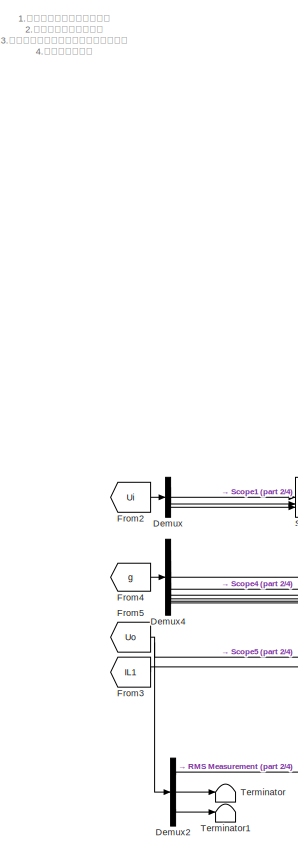
[diagram: root canvas - part 1/4, left side, full height]
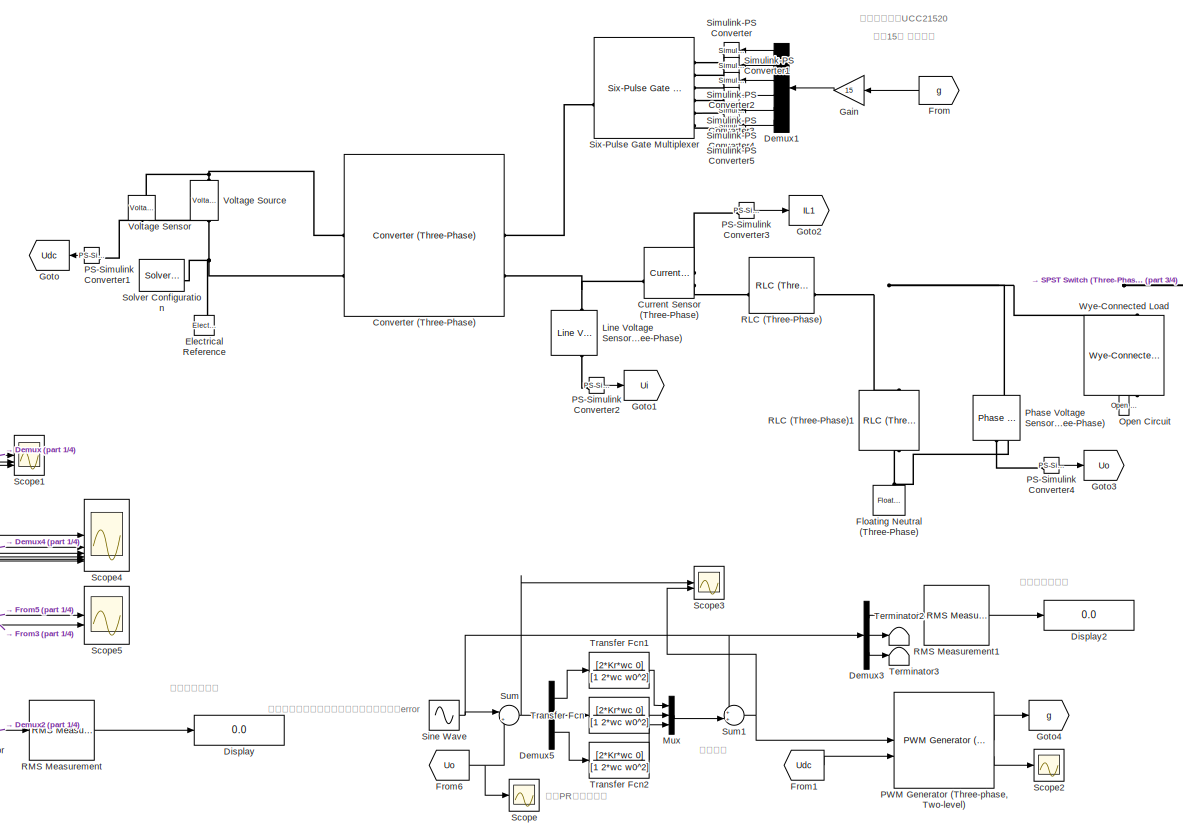
[diagram: root canvas - part 2/4, center side, full height]
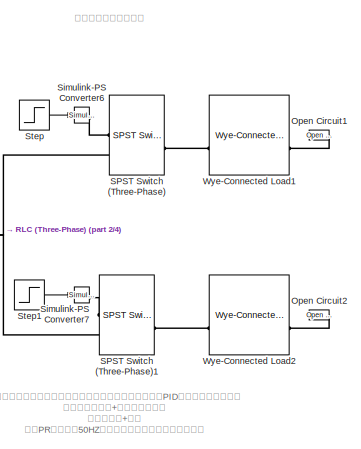
[diagram: root canvas - part 3/4, top right region]
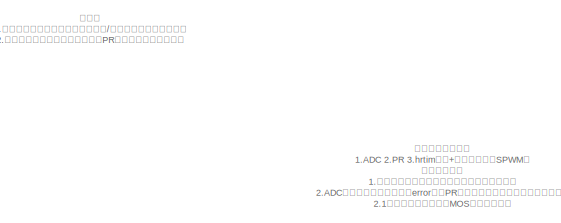
[diagram: root canvas - part 4/4, bottom center region]
MODEL slx_818b29fa635a
KIND model
CONFIG AbsTol = 1e-3
CONFIG EnableMultiTasking = off
CONFIG FixedStep = auto
CONFIG InitFcn = SampleTime = 1e-6;\n\nUn = 400;\nPn = 20e3;\n\nUdc = 700;\nL1 = 1e-3;\nC1 = 30e-6;\n\nfsw = 10e3;\n\nKr = 5;\nwc = 5*2*pi;\nw0 = 50*2*pi;
CONFIG MaxStep = auto
CONFIG MinStep = auto
CONFIG RelTol = 1e-3
CONFIG SampleTimeConstraint = Unconstrained
CONFIG SolverName = VariableStepAuto
CONFIG StartTime = 0.0
CONFIG StopTime = 0.2
BLOCK [Reference] Converter (Three-Phase)  REF=ee_lib/Semiconductors &
Converters/Converters/Converter
(Three-Phase)
  SourceBlock = ee_lib/Semiconductors &\nConverters/Converters/Converter\n(Three-Phase)
  SourceType = Converter\n(Three-Phase)
BLOCK [Reference] Current Sensor (Three-Phase)  REF=ee_lib/Sensors &
Transducers/Current Sensor
(Three-Phase)
  SourceBlock = ee_lib/Sensors &\nTransducers/Current Sensor\n(Three-Phase)
  SourceType = Current Sensor\n(Three-Phase)
BLOCK [Demux] Demux
  Outputs = 3
BLOCK [Demux] Demux1
  NameLocation = top
  Outputs = 6
BLOCK [Demux] Demux2
  Outputs = 3
BLOCK [Demux] Demux3
  Outputs = 3
BLOCK [Demux] Demux4
  Outputs = 6
BLOCK [Demux] Demux5
  Outputs = 3
BLOCK [Display] Display
  Decimation = 1
BLOCK [Display] Display2
  Decimation = 1
BLOCK [Reference] Electrical Reference  REF=fl_lib/Electrical/Electrical Elements/Electrical Reference
  NameLocation = right
  SourceBlock = fl_lib/Electrical/Electrical Elements/Electrical Reference
  SourceType = Electrical Reference
BLOCK [Reference] Floating Neutral (Three-Phase)  REF=ee_lib/Connectors &
References/Floating Neutral
(Three-Phase)
  NameLocation = right
  SourceBlock = ee_lib/Connectors &\nReferences/Floating Neutral\n(Three-Phase)
  SourceType = Floating Neutral\n(Three-Phase)
BLOCK [From] From
  GotoTag = g
  NameLocation = top
BLOCK [From] From1
  GotoTag = Udc
  NameLocation = top
BLOCK [From] From2
  GotoTag = Ui
BLOCK [From] From3
  GotoTag = IL1
BLOCK [From] From4
  GotoTag = g
BLOCK [From] From5
  GotoTag = Uo
BLOCK [From] From6
  GotoTag = Uo
BLOCK [Gain] Gain
  Gain = 15
BLOCK [Goto] Goto
  GotoTag = Udc
BLOCK [Goto] Goto1
  GotoTag = Ui
  NameLocation = top
BLOCK [Goto] Goto2
  GotoTag = IL1
  NameLocation = top
BLOCK [Goto] Goto3
  GotoTag = Uo
  NameLocation = top
BLOCK [Goto] Goto4
  GotoTag = g
  NameLocation = top
BLOCK [Reference] Line Voltage Sensor (Three-Phase)  REF=ee_lib/Sensors &
Transducers/Line Voltage Sensor
(Three-Phase)
  NameLocation = right
  SourceBlock = ee_lib/Sensors &\nTransducers/Line Voltage Sensor\n(Three-Phase)
  SourceType = Line Voltage Sensor\n(Three-Phase)
BLOCK [Mux] Mux
  DisplayOption = bar
  Inputs = 3
BLOCK [Reference] Open Circuit  REF=fl_lib/Electrical/Electrical Elements/Open Circuit
  NameLocation = right
  SourceBlock = fl_lib/Electrical/Electrical Elements/Open Circuit
  SourceType = Open Circuit
BLOCK [Reference] Open Circuit1  REF=fl_lib/Electrical/Electrical Elements/Open Circuit
  NameLocation = top
  SourceBlock = fl_lib/Electrical/Electrical Elements/Open Circuit
  SourceType = Open Circuit
BLOCK [Reference] Open Circuit2  REF=fl_lib/Electrical/Electrical Elements/Open Circuit
  NameLocation = top
  SourceBlock = fl_lib/Electrical/Electrical Elements/Open Circuit
  SourceType = Open Circuit
BLOCK [Reference] PS-Simulink Converter1  REF=nesl_utility/PS-Simulink
Converter
  NameLocation = top
  SourceBlock = nesl_utility/PS-Simulink\nConverter
  SourceType = PS-Simulink\nConverter
BLOCK [Reference] PS-Simulink Converter2  REF=nesl_utility/PS-Simulink
Converter
  SourceBlock = nesl_utility/PS-Simulink\nConverter
  SourceType = PS-Simulink\nConverter
BLOCK [Reference] PS-Simulink Converter3  REF=nesl_utility/PS-Simulink
Converter
  SourceBlock = nesl_utility/PS-Simulink\nConverter
  SourceType = PS-Simulink\nConverter
BLOCK [Reference] PS-Simulink Converter4  REF=nesl_utility/PS-Simulink
Converter
  SourceBlock = nesl_utility/PS-Simulink\nConverter
  SourceType = PS-Simulink\nConverter
BLOCK [Reference] PWM Generator (Three-phase, Two-level)  REF=eePwmGeneratorTwoLevel/PWM Generator
(Three-phase, Two-level)
  LibrarySourceBlock = ee_sl_lib/Pulse Width\nModulation/PWM Generator\n(Three-phase, Two-level)
  SourceBlock = eePwmGeneratorTwoLevel/PWM Generator\n(Three-phase, Two-level)
  SourceType = PWM Generator (three-phase, two-level)
BLOCK [Reference] Phase Voltage Sensor (Three-Phase)  REF=ee_lib/Sensors &
Transducers/Phase Voltage Sensor
(Three-Phase)
  NameLocation = right
  SourceBlock = ee_lib/Sensors &\nTransducers/Phase Voltage Sensor\n(Three-Phase)
  SourceType = Phase Voltage Sensor\n(Three-Phase)
BLOCK [Reference] RLC (Three-Phase)  REF=ee_lib/Passive/RLC Assemblies/RLC (Three-Phase)
  SourceBlock = ee_lib/Passive/RLC Assemblies/RLC (Three-Phase)
  SourceType = RLC (Three-Phase)
BLOCK [Reference] RLC (Three-Phase)1  REF=ee_lib/Passive/RLC Assemblies/RLC (Three-Phase)
  NameLocation = left
  SourceBlock = ee_lib/Passive/RLC Assemblies/RLC (Three-Phase)
  SourceType = RLC (Three-Phase)
BLOCK [Reference] RMS Measurement  REF=eeRmsMeasurement/RMS
Measurement
  LibrarySourceBlock = ee_sl_lib/Measurements/RMS\nMeasurement
  SourceBlock = eeRmsMeasurement/RMS\nMeasurement
  SourceType = RMS Measurement
BLOCK [Reference] RMS Measurement1  REF=eeRmsMeasurement/RMS
Measurement
  LibrarySourceBlock = ee_sl_lib/Measurements/RMS\nMeasurement
  SourceBlock = eeRmsMeasurement/RMS\nMeasurement
  SourceType = RMS Measurement
BLOCK [Reference] SPST Switch (Three-Phase)  REF=ee_lib/Switches & Breakers/SPST Switch
(Three-Phase)
  SourceBlock = ee_lib/Switches & Breakers/SPST Switch\n(Three-Phase)
  SourceType = SPST Switch\n(Three-Phase)
BLOCK [Reference] SPST Switch (Three-Phase)1  REF=ee_lib/Switches & Breakers/SPST Switch
(Three-Phase)
  SourceBlock = ee_lib/Switches & Breakers/SPST Switch\n(Three-Phase)
  SourceType = SPST Switch\n(Three-Phase)
BLOCK [Scope] Scope
  Floating = off
  NumInputPorts = 1
  ScopeSpecificationString = Simulink.scopes.TimeScopeBlockCfg('CurrentConfiguration', extmgr.ConfigurationSet(extmgr.Configuration('Core','General UI',true),extmgr.Configuration('Core','Source UI',true),extmgr.Configuration('Sources','WiredSimulink',true,'DataLoggingVariableName','ScopeData1'),extmgr.Configuration('Visuals','Time Domain',true,'SerializedDisplays',{struct('MinYLimReal','-603.83005','MaxYLimReal','560.03061','...<+1525ch>
BLOCK [Scope] Scope1
  Floating = off
  NumInputPorts = 3
  ScopeSpecificationString = Simulink.scopes.TimeScopeBlockCfg('CurrentConfiguration', extmgr.ConfigurationSet(extmgr.Configuration('Core','General UI',true),extmgr.Configuration('Core','Source UI',true),extmgr.Configuration('Sources','WiredSimulink',true),extmgr.Configuration('Visuals','Time Domain',true,'SerializedDisplays',{struct('MinYLimReal','-875.03449','MaxYLimReal','875.00828','YLabelReal','','MinYLimMag',' 0.00000',...<+2798ch>
BLOCK [Scope] Scope2
  Floating = off
  NumInputPorts = 1
  ScopeSpecificationString = Simulink.scopes.TimeScopeBlockCfg('CurrentConfiguration', extmgr.ConfigurationSet(extmgr.Configuration('Core','General UI',true),extmgr.Configuration('Core','Source UI',true),extmgr.Configuration('Sources','WiredSimulink',true,'DataLoggingVariableName','ScopeData2'),extmgr.Configuration('Visuals','Time Domain',true,'SerializedDisplays',{struct('MinYLimReal','-1.20804','MaxYLimReal','1.03392','YLab...<+1603ch>
BLOCK [Scope] Scope3
  Floating = off
  NumInputPorts = 2
  ScopeSpecificationString = Simulink.scopes.TimeScopeBlockCfg('CurrentConfiguration', extmgr.ConfigurationSet(extmgr.Configuration('Core','General UI',true),extmgr.Configuration('Core','Source UI',true),extmgr.Configuration('Sources','WiredSimulink',true,'DataLoggingVariableName','ScopeData1'),extmgr.Configuration('Visuals','Time Domain',true,'SerializedDisplays',{struct('MinYLimReal','-356.77675','MaxYLimReal','353.91154','...<+2176ch>
BLOCK [Scope] Scope4
  Floating = off
  NumInputPorts = 6
  ScopeSpecificationString = Simulink.scopes.TimeScopeBlockCfg('CurrentConfiguration', extmgr.ConfigurationSet(extmgr.Configuration('Core','General UI',true),extmgr.Configuration('Core','Source UI',true),extmgr.Configuration('Sources','WiredSimulink',true,'DataLoggingVariableName','ScopeData3'),extmgr.Configuration('Visuals','Time Domain',true,'SerializedDisplays',{struct('MinYLimReal','-0.125','MaxYLimReal','1.05175','YLabel...<+4960ch>
BLOCK [Scope] Scope5
  Floating = off
  NumInputPorts = 2
  ScopeSpecificationString = Simulink.scopes.TimeScopeBlockCfg('CurrentConfiguration', extmgr.ConfigurationSet(extmgr.Configuration('Core','General UI',true),extmgr.Configuration('Core','Source UI',true),extmgr.Configuration('Sources','WiredSimulink',true,'DataLoggingVariableName','ScopeData4'),extmgr.Configuration('Visuals','Time Domain',true,'SerializedDisplays',{struct('MinYLimReal','-635.26934','MaxYLimReal','592.08844','...<+2301ch>
BLOCK [Reference] Simulink-PS Converter  REF=nesl_utility/Simulink-PS
Converter
  NameLocation = top
  SourceBlock = nesl_utility/Simulink-PS\nConverter
  SourceType = Simulink-PS\nConverter
BLOCK [Reference] Simulink-PS Converter1  REF=nesl_utility/Simulink-PS
Converter
  NameLocation = top
  SourceBlock = nesl_utility/Simulink-PS\nConverter
  SourceType = Simulink-PS\nConverter
BLOCK [Reference] Simulink-PS Converter2  REF=nesl_utility/Simulink-PS
Converter
  NameLocation = top
  SourceBlock = nesl_utility/Simulink-PS\nConverter
  SourceType = Simulink-PS\nConverter
BLOCK [Reference] Simulink-PS Converter3  REF=nesl_utility/Simulink-PS
Converter
  NameLocation = top
  SourceBlock = nesl_utility/Simulink-PS\nConverter
  SourceType = Simulink-PS\nConverter
BLOCK [Reference] Simulink-PS Converter4  REF=nesl_utility/Simulink-PS
Converter
  NameLocation = top
  SourceBlock = nesl_utility/Simulink-PS\nConverter
  SourceType = Simulink-PS\nConverter
BLOCK [Reference] Simulink-PS Converter5  REF=nesl_utility/Simulink-PS
Converter
  NameLocation = top
  SourceBlock = nesl_utility/Simulink-PS\nConverter
  SourceType = Simulink-PS\nConverter
BLOCK [Reference] Simulink-PS Converter6  REF=nesl_utility/Simulink-PS
Converter
  SourceBlock = nesl_utility/Simulink-PS\nConverter
  SourceType = Simulink-PS\nConverter
BLOCK [Reference] Simulink-PS Converter7  REF=nesl_utility/Simulink-PS
Converter
  SourceBlock = nesl_utility/Simulink-PS\nConverter
  SourceType = Simulink-PS\nConverter
BLOCK [Sin] Sine Wave
  Amplitude = Un/sqrt(3)*sqrt(2)
  Frequency = 50*2*pi
  Phase = [0 2*pi/3 4*pi/3]
  SampleTime = 0
BLOCK [Reference] Six-Pulse Gate Multiplexer  REF=ee_lib/Semiconductors &
Converters/Converters/Six-Pulse Gate
Multiplexer
  SourceBlock = ee_lib/Semiconductors &\nConverters/Converters/Six-Pulse Gate\nMultiplexer
  SourceType = Six-Pulse Gate\nMultiplexer
BLOCK [Reference] Solver Configuration  REF=nesl_utility/Solver
Configuration
  SourceBlock = nesl_utility/Solver\nConfiguration
  SourceType = Solver\nConfiguration
BLOCK [Step] Step
  SampleTime = 0
  Time = 0.06
BLOCK [Step] Step1
  SampleTime = 0
  Time = 0.08
BLOCK [Sum] Sum
  Inputs = |+-
BLOCK [Sum] Sum1
  Inputs = ++|
BLOCK [Terminator] Terminator
BLOCK [Terminator] Terminator1
BLOCK [Terminator] Terminator2
BLOCK [Terminator] Terminator3
BLOCK [TransferFcn] Transfer Fcn
  Denominator = [1 2*wc w0^2]
  Numerator = [2*Kr*wc 0]
BLOCK [TransferFcn] Transfer Fcn1
  Denominator = [1 2*wc w0^2]
  Numerator = [2*Kr*wc 0]
BLOCK [TransferFcn] Transfer Fcn2
  Denominator = [1 2*wc w0^2]
  Numerator = [2*Kr*wc 0]
BLOCK [Reference] Voltage Sensor  REF=fl_lib/Electrical/Electrical Sensors/Voltage Sensor
  NameLocation = right
  SourceBlock = fl_lib/Electrical/Electrical Sensors/Voltage Sensor
  SourceType = Voltage Sensor
BLOCK [Reference] Voltage Source  REF=ee_lib/Sources/Voltage Source
  NameLocation = right
  SourceBlock = ee_lib/Sources/Voltage Source
  SourceType = Voltage Source
BLOCK [Reference] Wye-Connected Load  REF=ee_lib/Passive/RLC Assemblies/Wye-Connected Load
  NameLocation = left
  SourceBlock = ee_lib/Passive/RLC Assemblies/Wye-Connected Load
  SourceType = Wye-Connected Load
BLOCK [Reference] Wye-Connected Load1  REF=ee_lib/Passive/RLC Assemblies/Wye-Connected Load
  SourceBlock = ee_lib/Passive/RLC Assemblies/Wye-Connected Load
  SourceType = Wye-Connected Load
BLOCK [Reference] Wye-Connected Load2  REF=ee_lib/Passive/RLC Assemblies/Wye-Connected Load
  SourceBlock = ee_lib/Passive/RLC Assemblies/Wye-Connected Load
  SourceType = Wye-Connected Load
ANNOTATION (root): 由于负载变化，导致输出与目标输出出现误差，因此引入PID控制器进行复合调节 开环稳态工作点+闭环小范围调节 也就是前馈+闭环 引入PR控制，使50HZ下的增益无穷大，实现无静差控制
ANNOTATION (root): 1.搭建三相独立逆变器的仿真 2.回调函数里面设置参数 3.开环、闭环及复合控制（谐振调节器） 4.黑库的三相仿真
ANNOTATION (root): 负载接入与阻感性变化
ANNOTATION (root): 闭环控制整体思路 1.ADC 2.PR 3.hrtim驱动+中心对齐调制SPWM波 具体控制策略 1.开环占空比作为电压前馈与目标期望电压输出 2.ADC采集电压瞬时值，计算error进行PR控制计算，作为后馈复合控制占空比 2.1整体完成频率应该为MOS开关频率分频 2.2hrtim定时器触发中断------>ADC+DMA进行采样------>hrtim回调函数中进行PR闭环控制计算----->完成后馈计算 3.前馈+后馈进行SPWM波中心对齐调制
ANNOTATION (root): 代码上 1.设定期望值后直接将当前输出大小/幅值大小得到前馈占空比 2.将输出采样后与输入作差再传入PR控制器得到后馈占空比
ANNOTATION (root): 传入PR控制器计算
ANNOTATION (root): 增益15倍 驱动栅极
ANNOTATION (root): 复合控制
ANNOTATION (root): 实际输出有效值
ANNOTATION (root): 栅极驱动芯片UCC21520
ANNOTATION (root): 根据目标输出电压与实际输出电压得到误差error
ANNOTATION (root): 目标输出有效值
LINE Demux1:1 -> Simulink-PS Converter:1
LINE Demux1:2 -> Simulink-PS Converter1:1
LINE Demux1:3 -> Simulink-PS Converter2:1
LINE Demux1:4 -> Simulink-PS Converter3:1
LINE Demux1:5 -> Simulink-PS Converter4:1
LINE Demux1:6 -> Simulink-PS Converter5:1
LINE Demux2:1 -> RMS Measurement:1
LINE Demux2:2 -> Terminator:1
LINE Demux2:3 -> Terminator1:1
LINE Demux3:1 -> RMS Measurement1:1
LINE Demux3:2 -> Terminator2:1
LINE Demux3:3 -> Terminator3:1
LINE Demux4:1 -> Scope4:1
LINE Demux4:2 -> Scope4:2
LINE Demux4:3 -> Scope4:3
LINE Demux4:4 -> Scope4:4
LINE Demux4:5 -> Scope4:5
LINE Demux4:6 -> Scope4:6
LINE Demux5:1 -> Transfer Fcn1:1
LINE Demux5:2 -> Transfer Fcn:1
LINE Demux5:3 -> Transfer Fcn2:1
LINE Demux:1 -> Scope1:1
LINE Demux:2 -> Scope1:2
LINE Demux:3 -> Scope1:3
LINE From1:1 -> PWM Generator (Three-phase, Two-level):2
LINE From2:1 -> Demux:1
LINE From3:1 -> Scope5:2
LINE From4:1 -> Demux4:1
NET From5:1 -> Demux2:1, Scope5:1
NET From6:1 -> Scope:1, Sum:2
LINE From:1 -> Gain:1
LINE Gain:1 -> Demux1:1
LINE Mux:1 -> Sum1:2
LINE PS-Simulink Converter1:1 -> Goto:1
LINE PS-Simulink Converter2:1 -> Goto1:1
LINE PS-Simulink Converter3:1 -> Goto2:1
LINE PS-Simulink Converter4:1 -> Goto3:1
LINE PWM Generator (Three-phase, Two-level):1 -> Goto4:1
LINE PWM Generator (Three-phase, Two-level):2 -> Scope2:1
LINE RMS Measurement1:1 -> Display2:1
LINE RMS Measurement:1 -> Display:1
NET Sine Wave:1 -> Demux3:1, Sum1:1, Sum:1
LINE Step1:1 -> Simulink-PS Converter7:1
LINE Step:1 -> Simulink-PS Converter6:1
NET Sum1:1 -> PWM Generator (Three-phase, Two-level):1, Scope3:2
NET Sum:1 -> Demux5:1, Scope3:1
LINE Transfer Fcn1:1 -> Mux:1
LINE Transfer Fcn2:1 -> Mux:3
LINE Transfer Fcn:1 -> Mux:2
PLINE Converter (Three-Phase):LConn1 -- Six-Pulse Gate Multiplexer:RConn1
PNET net1: Converter (Three-Phase):LConn2 -- Current Sensor (Three-Phase):LConn1 -- Line Voltage Sensor (Three-Phase):LConn1
PNET net2: Converter (Three-Phase):RConn1 -- Voltage Sensor:LConn1 -- Voltage Source:LConn1
PNET net3: Converter (Three-Phase):RConn2 -- Electrical Reference:LConn1 -- Solver Configuration:RConn1 -- Voltage Sensor:RConn2 -- Voltage Source:RConn1
PLINE Current Sensor (Three-Phase):RConn1 -- PS-Simulink Converter3:LConn1
PLINE Current Sensor (Three-Phase):RConn2 -- RLC (Three-Phase):LConn1
PNET net4: Floating Neutral (Three-Phase):LConn1 -- Phase Voltage Sensor (Three-Phase):RConn2 -- RLC (Three-Phase)1:RConn1
PLINE Line Voltage Sensor (Three-Phase):RConn1 -- PS-Simulink Converter2:LConn1
PLINE Open Circuit1:LConn1 -- Wye-Connected Load1:RConn1
PLINE Open Circuit2:LConn1 -- Wye-Connected Load2:RConn1
PLINE Open Circuit:LConn1 -- Wye-Connected Load:RConn1
PLINE PS-Simulink Converter1:LConn1 -- Voltage Sensor:RConn1
PLINE PS-Simulink Converter4:LConn1 -- Phase Voltage Sensor (Three-Phase):RConn1
PNET net5: Phase Voltage Sensor (Three-Phase):LConn1 -- RLC (Three-Phase)1:LConn1 -- RLC (Three-Phase):RConn1 -- SPST Switch (Three-Phase)1:LConn2 -- SPST Switch (Three-Phase):LConn2 -- Wye-Connected Load:LConn1
PLINE SPST Switch (Three-Phase)1:LConn1 -- Simulink-PS Converter7:RConn1
PLINE SPST Switch (Three-Phase)1:RConn1 -- Wye-Connected Load2:LConn1
PLINE SPST Switch (Three-Phase):LConn1 -- Simulink-PS Converter6:RConn1
PLINE SPST Switch (Three-Phase):RConn1 -- Wye-Connected Load1:LConn1
PLINE Simulink-PS Converter1:RConn1 -- Six-Pulse Gate Multiplexer:LConn2
PLINE Simulink-PS Converter2:RConn1 -- Six-Pulse Gate Multiplexer:LConn3
PLINE Simulink-PS Converter3:RConn1 -- Six-Pulse Gate Multiplexer:LConn4
PLINE Simulink-PS Converter4:RConn1 -- Six-Pulse Gate Multiplexer:LConn5
PLINE Simulink-PS Converter5:RConn1 -- Six-Pulse Gate Multiplexer:LConn6
PLINE Simulink-PS Converter:RConn1 -- Six-Pulse Gate Multiplexer:LConn1
note: NET lines group one-source signal fan-out (src -> all destinations, sorted); 1:1 wires keep LINE; PNET lines group multi-terminal physical nets as a canonical sorted terminal list (undirected conserving connections); 2-terminal nets keep the pairwise PLINE form
